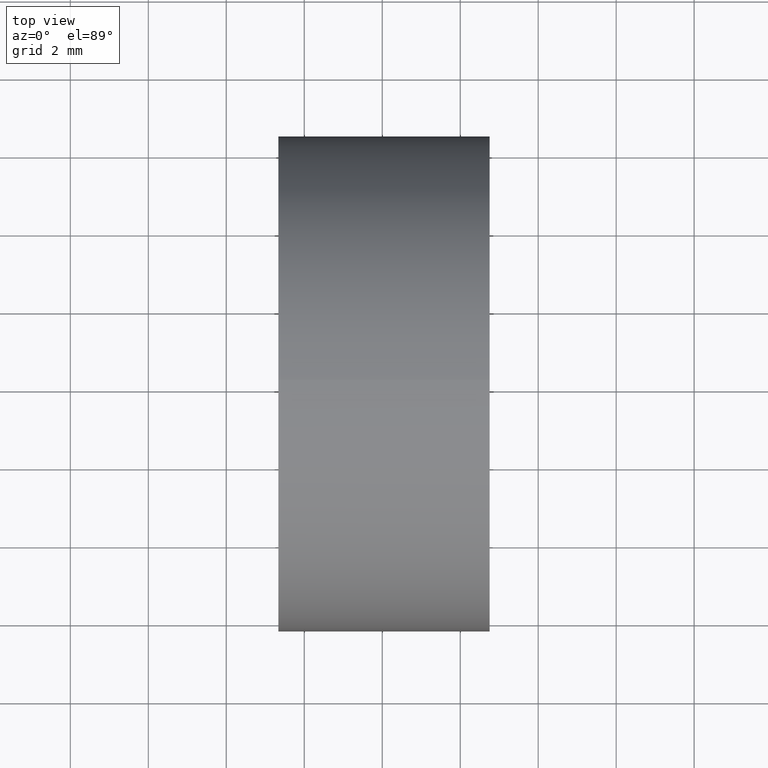
[diagram: clean part render]
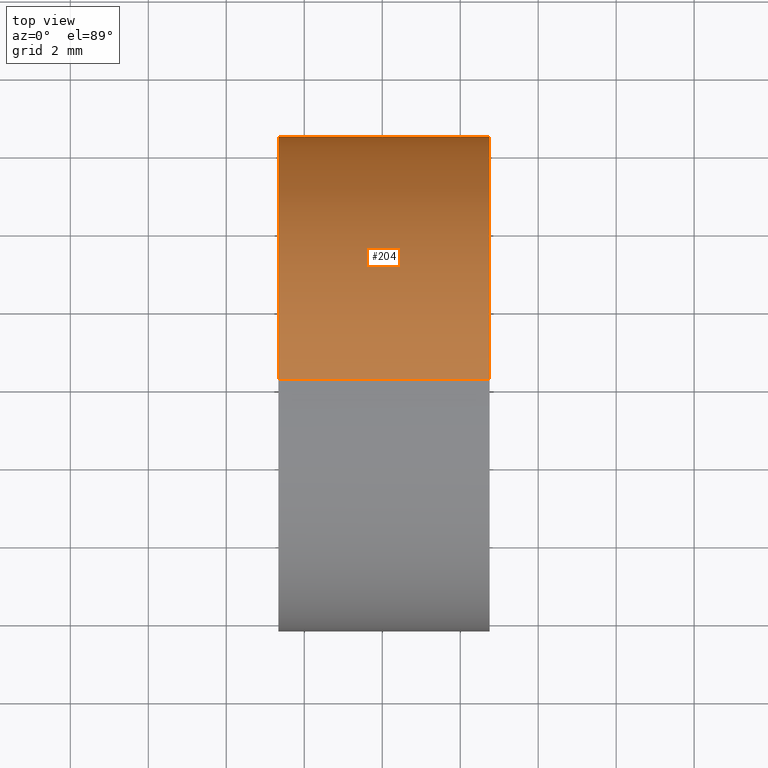
[diagram: same view with one face highlighted and labeled with its STEP entity id]
A machine part, top view. The second image highlights one B-rep face of the part: STEP entity #204.
In plain terms, the highlighted cylindrical surface (partial cylindrical patch) has radius 6.35 mm, axis along (-1, -0, -0).
Its self-contained STEP definition (entity closure, byte-faithful):
#5 = EDGE_CURVE ( 'NONE', #101, #154, #141, .T. ) ;
#6 = DIRECTION ( 'NONE',  ( -1.000000000000000000, -0.0000000000000000000, -0.0000000000000000000 ) ) ;
#9 = ORIENTED_EDGE ( 'NONE', *, *, #227, .F. ) ;
#15 = CARTESIAN_POINT ( 'NONE',  ( 50.75364397030717400, 32.43904114919496400, 0.0000000000000000000 ) ) ;
#22 = VERTEX_POINT ( 'NONE', #152 ) ;
#28 = DIRECTION ( 'NONE',  ( 0.0000000000000000000, 0.0000000000000000000, 1.000000000000000000 ) ) ;
#31 = EDGE_LOOP ( 'NONE', ( #175, #83, #9, #98, #37, #213 ) ) ;
#32 = DIRECTION ( 'NONE',  ( -1.000000000000000000, -0.0000000000000000000, -0.0000000000000000000 ) ) ;
#37 = ORIENTED_EDGE ( 'NONE', *, *, #114, .F. ) ;
#39 = CARTESIAN_POINT ( 'NONE',  ( 42.44986111413682300, 26.08904114919495900, 6.349999999999997900 ) ) ;
#40 = CARTESIAN_POINT ( 'NONE',  ( 42.44986111413682300, 26.08904114919495900, -6.349999999999997900 ) ) ;
#48 = FACE_OUTER_BOUND ( 'NONE', #31, .T. ) ;
#56 = VERTEX_POINT ( 'NONE', #185 ) ;
#59 = DIRECTION ( 'NONE',  ( 0.0000000000000000000, 0.0000000000000000000, 1.000000000000000000 ) ) ;
#63 = CARTESIAN_POINT ( 'NONE',  ( 45.33679999805279000, 26.08904114919495900, 0.0000000000000000000 ) ) ;
#70 = EDGE_CURVE ( 'NONE', #22, #56, #220, .T. ) ;
#72 = DIRECTION ( 'NONE',  ( -1.000000000000000000, -0.0000000000000000000, -0.0000000000000000000 ) ) ;
#83 = ORIENTED_EDGE ( 'NONE', *, *, #70, .T. ) ;
#84 = CIRCLE ( 'NONE', #184, 6.349999999999997900 ) ;
#85 = VERTEX_POINT ( 'NONE', #121 ) ;
#88 = DIRECTION ( 'NONE',  ( -1.000000000000000000, -0.0000000000000000000, -0.0000000000000000000 ) ) ;
#90 = VECTOR ( 'NONE', #88, 1000.000000000000000 ) ;
#98 = ORIENTED_EDGE ( 'NONE', *, *, #219, .F. ) ;
#101 = VERTEX_POINT ( 'NONE', #126 ) ;
#105 = AXIS2_PLACEMENT_3D ( 'NONE', #111, #171, #208 ) ;
#108 = EDGE_CURVE ( 'NONE', #154, #22, #142, .T. ) ;
#111 = CARTESIAN_POINT ( 'NONE',  ( 42.44986111413682300, 26.08904114919495900, 0.0000000000000000000 ) ) ;
#112 = DIRECTION ( 'NONE',  ( -1.000000000000000000, -0.0000000000000000000, -0.0000000000000000000 ) ) ;
#114 = EDGE_CURVE ( 'NONE', #101, #160, #115, .T. ) ;
#115 = LINE ( 'NONE', #39, #90 ) ;
#121 = CARTESIAN_POINT ( 'NONE',  ( 45.33679999805279000, 32.43904114919494900, 0.0000000000000000000 ) ) ;
#126 = CARTESIAN_POINT ( 'NONE',  ( 50.75364397030717400, 26.08904114919495900, 6.350000000000005000 ) ) ;
#134 = CARTESIAN_POINT ( 'NONE',  ( 45.33679999805279000, 26.08904114919495900, 6.349999999999997900 ) ) ;
#141 = CIRCLE ( 'NONE', #159, 6.350000000000005000 ) ;
#142 = CIRCLE ( 'NONE', #144, 6.350000000000005000 ) ;
#144 = AXIS2_PLACEMENT_3D ( 'NONE', #163, #6, #146 ) ;
#146 = DIRECTION ( 'NONE',  ( 0.0000000000000000000, 0.0000000000000000000, 1.000000000000000000 ) ) ;
#152 = CARTESIAN_POINT ( 'NONE',  ( 50.75364397030717400, 26.08904114919495900, -6.350000000000005000 ) ) ;
#154 = VERTEX_POINT ( 'NONE', #15 ) ;
#157 = VECTOR ( 'NONE', #217, 1000.000000000000000 ) ;
#159 = AXIS2_PLACEMENT_3D ( 'NONE', #161, #72, #28 ) ;
#160 = VERTEX_POINT ( 'NONE', #134 ) ;
#161 = CARTESIAN_POINT ( 'NONE',  ( 50.75364397030717400, 26.08904114919495900, 0.0000000000000000000 ) ) ;
#163 = CARTESIAN_POINT ( 'NONE',  ( 50.75364397030717400, 26.08904114919495900, 0.0000000000000000000 ) ) ;
#171 = DIRECTION ( 'NONE',  ( -1.000000000000000000, -0.0000000000000000000, -0.0000000000000000000 ) ) ;
#175 = ORIENTED_EDGE ( 'NONE', *, *, #108, .T. ) ;
#184 = AXIS2_PLACEMENT_3D ( 'NONE', #63, #112, #59 ) ;
#185 = CARTESIAN_POINT ( 'NONE',  ( 45.33679999805279000, 26.08904114919495900, -6.349999999999997900 ) ) ;
#193 = CARTESIAN_POINT ( 'NONE',  ( 45.33679999805279000, 26.08904114919495900, 0.0000000000000000000 ) ) ;
#203 = DIRECTION ( 'NONE',  ( 0.0000000000000000000, 0.0000000000000000000, 1.000000000000000000 ) ) ;
#204 = ADVANCED_FACE ( 'NONE', ( #48 ), #209, .T. ) ;
#207 = AXIS2_PLACEMENT_3D ( 'NONE', #193, #32, #203 ) ;
#208 = DIRECTION ( 'NONE',  ( 0.0000000000000000000, 0.0000000000000000000, 1.000000000000000000 ) ) ;
#209 = CYLINDRICAL_SURFACE ( 'NONE', #105, 6.349999999999997900 ) ;
#212 = CIRCLE ( 'NONE', #207, 6.349999999999997900 ) ;
#213 = ORIENTED_EDGE ( 'NONE', *, *, #5, .T. ) ;
#217 = DIRECTION ( 'NONE',  ( -1.000000000000000000, -0.0000000000000000000, -0.0000000000000000000 ) ) ;
#219 = EDGE_CURVE ( 'NONE', #160, #85, #84, .T. ) ;
#220 = LINE ( 'NONE', #40, #157 ) ;
#227 = EDGE_CURVE ( 'NONE', #85, #56, #212, .T. ) ;